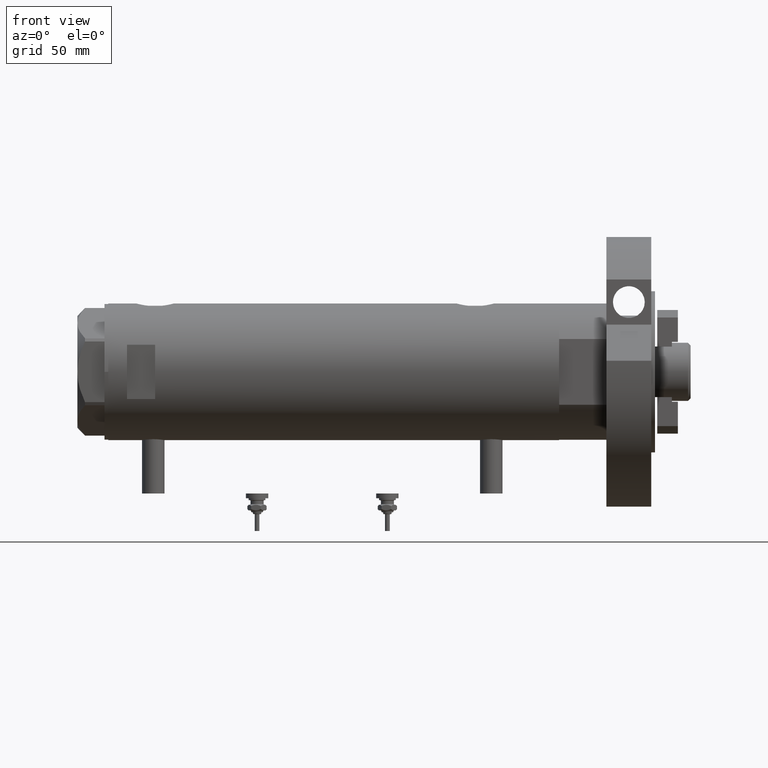
[diagram: clean part render]
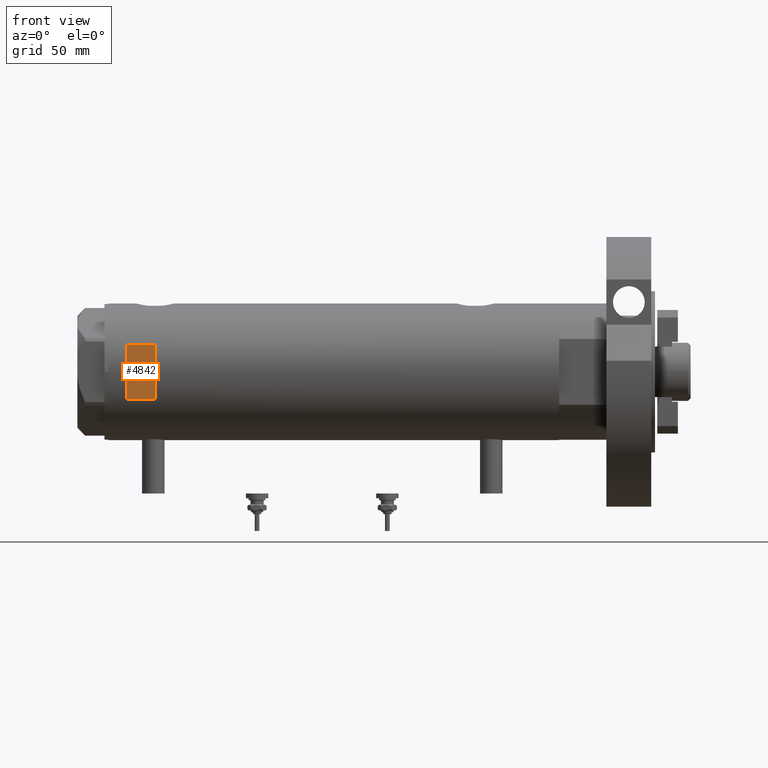
[diagram: same view with one face highlighted and labeled with its STEP entity id]
A machine part, front view. The second image highlights one B-rep face of the part: STEP entity #4842.
In plain terms, the highlighted planar face has unit normal (-0, 1, 0).
Its self-contained STEP definition (entity closure, byte-faithful):
#6 = ORIENTED_EDGE ( 'NONE', *, *, #6385, .T. ) ;
#42 = CARTESIAN_POINT ( 'NONE',  ( 14.49137674618942739, -33.50000000000000000, 95.40000000000000568 ) ) ;
#344 = ORIENTED_EDGE ( 'NONE', *, *, #2879, .T. ) ;
#418 = VERTEX_POINT ( 'NONE', #42 ) ;
#740 = VECTOR ( 'NONE', #2244, 1000.000000000000000 ) ;
#897 = CARTESIAN_POINT ( 'NONE',  ( -36.50000000000000000, -33.50000000000000000, 95.40000000000000568 ) ) ;
#954 = CARTESIAN_POINT ( 'NONE',  ( -14.49137674618942739, -33.50000000000000000, 95.40000000000000568 ) ) ;
#1621 = DIRECTION ( 'NONE',  ( 1.000000000000000000, -0.000000000000000000, -0.000000000000000000 ) ) ;
#2244 = DIRECTION ( 'NONE',  ( 1.000000000000000000, -0.000000000000000000, -0.000000000000000000 ) ) ;
#2731 = CARTESIAN_POINT ( 'NONE',  ( -14.49137674618942739, -33.50000000000000000, -120.4000000000000057 ) ) ;
#2772 = VECTOR ( 'NONE', #5958, 1000.000000000000000 ) ;
#2879 = EDGE_CURVE ( 'NONE', #6447, #418, #6587, .T. ) ;
#2887 = LINE ( 'NONE', #8017, #6809 ) ;
#2916 = VERTEX_POINT ( 'NONE', #6041 ) ;
#2928 = CARTESIAN_POINT ( 'NONE',  ( 14.49137674618942739, -33.50000000000000000, -120.4000000000000057 ) ) ;
#2935 = VECTOR ( 'NONE', #4638, 1000.000000000000000 ) ;
#3584 = DIRECTION ( 'NONE',  ( 0.000000000000000000, 1.000000000000000000, 0.000000000000000000 ) ) ;
#4271 = EDGE_CURVE ( 'NONE', #418, #2916, #6623, .T. ) ;
#4298 = ORIENTED_EDGE ( 'NONE', *, *, #5455, .F. ) ;
#4347 = DIRECTION ( 'NONE',  ( 0.000000000000000000, -0.000000000000000000, 1.000000000000000000 ) ) ;
#4531 = AXIS2_PLACEMENT_3D ( 'NONE', #7534, #3584, #4347 ) ;
#4638 = DIRECTION ( 'NONE',  ( -0.000000000000000000, -0.000000000000000000, -1.000000000000000000 ) ) ;
#4842 = ADVANCED_FACE ( 'NONE', ( #7414 ), #5016, .F. ) ;
#5016 = PLANE ( 'NONE',  #4531 ) ;
#5455 = EDGE_CURVE ( 'NONE', #5665, #2916, #2887, .T. ) ;
#5665 = VERTEX_POINT ( 'NONE', #6463 ) ;
#5958 = DIRECTION ( 'NONE',  ( 0.000000000000000000, 0.000000000000000000, 1.000000000000000000 ) ) ;
#6041 = CARTESIAN_POINT ( 'NONE',  ( 14.49137674618942739, -33.50000000000000000, 110.3999999999999915 ) ) ;
#6385 = EDGE_CURVE ( 'NONE', #5665, #6447, #7827, .T. ) ;
#6447 = VERTEX_POINT ( 'NONE', #954 ) ;
#6463 = CARTESIAN_POINT ( 'NONE',  ( -14.49137674618942739, -33.50000000000000000, 110.3999999999999915 ) ) ;
#6587 = LINE ( 'NONE', #897, #740 ) ;
#6602 = EDGE_LOOP ( 'NONE', ( #6, #344, #8046, #4298 ) ) ;
#6623 = LINE ( 'NONE', #2928, #2772 ) ;
#6809 = VECTOR ( 'NONE', #1621, 1000.000000000000000 ) ;
#7414 = FACE_OUTER_BOUND ( 'NONE', #6602, .T. ) ;
#7534 = CARTESIAN_POINT ( 'NONE',  ( -36.50000000000000000, -33.50000000000000000, 110.3999999999999915 ) ) ;
#7827 = LINE ( 'NONE', #2731, #2935 ) ;
#8017 = CARTESIAN_POINT ( 'NONE',  ( -36.50000000000000000, -33.50000000000000000, 110.3999999999999915 ) ) ;
#8046 = ORIENTED_EDGE ( 'NONE', *, *, #4271, .T. ) ;